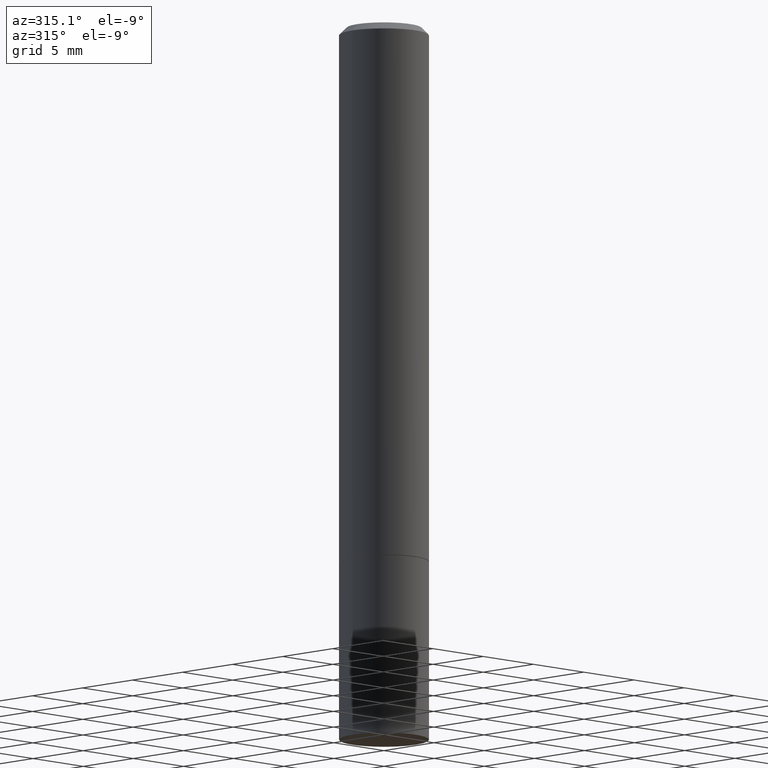
[diagram: clean part render]
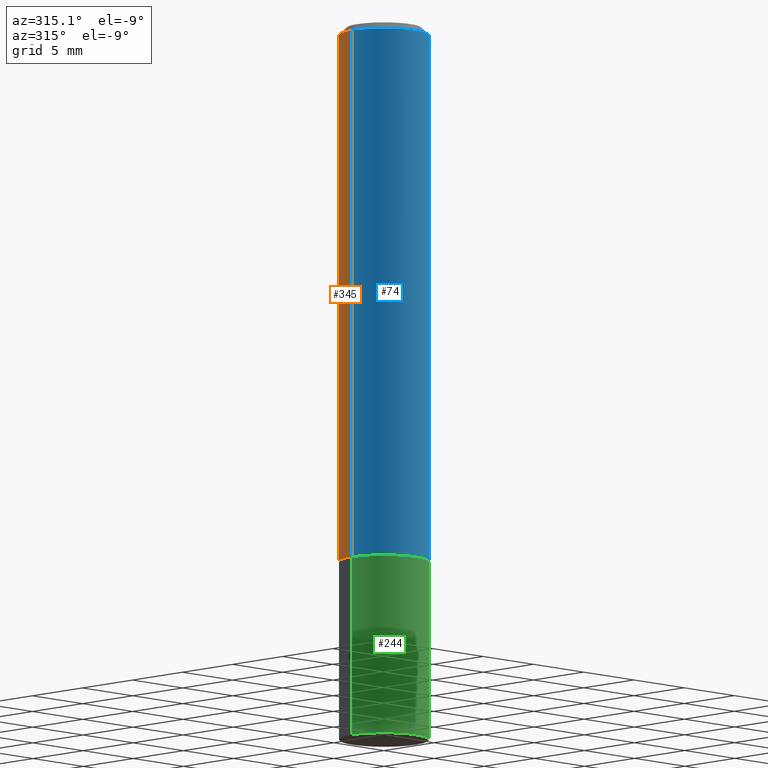
[diagram: same view with three faces highlighted in distinct colors, each labeled with its STEP entity id]
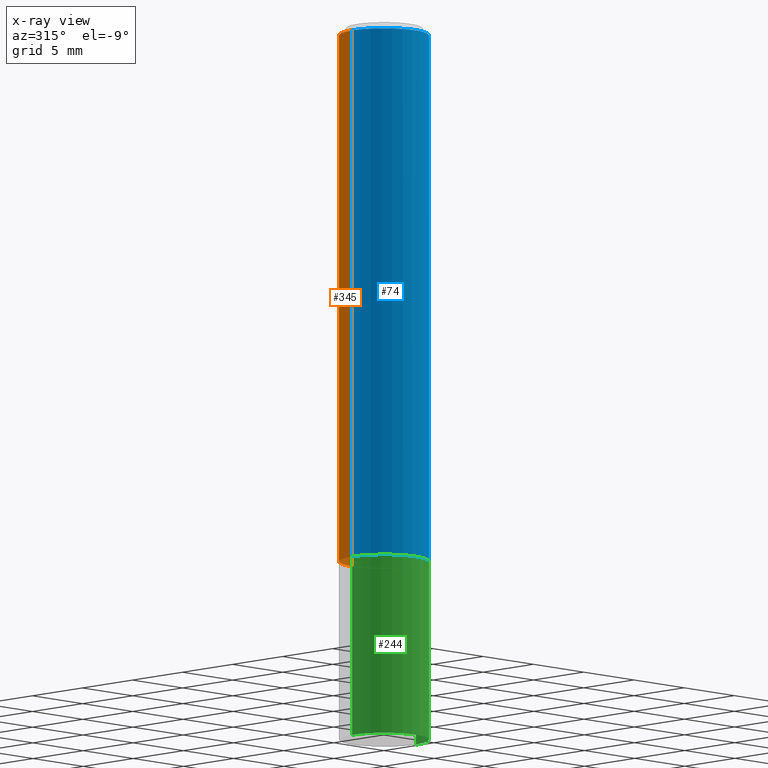
[diagram: x-ray of the same camera — body ghosted, the three highlighted faces saturated]
A machine part, auxiliary view with three faces highlighted in distinct colors.
The next image is the same camera in x-ray (body ghosted, the three faces saturated) — at least one of them is partly hidden behind the body in this view.
Their STEP definitions:

[orange] entity #345 — the highlighted cylindrical surface (partial cylindrical patch) has radius 3.175 mm, axis along (-0, 0, 1).
#12 = VERTEX_POINT ( 'NONE', #343 ) ;
#17 = EDGE_CURVE ( 'NONE', #94, #220, #141, .T. ) ;
#19 = CARTESIAN_POINT ( 'NONE',  ( 3.665757740471518732E-29, -5.233730526925875170E-15, -1.498999999999999666 ) ) ;
#28 = ORIENTED_EDGE ( 'NONE', *, *, #17, .F. ) ;
#42 = FACE_OUTER_BOUND ( 'NONE', #304, .T. ) ;
#57 = CARTESIAN_POINT ( 'NONE',  ( 0.1250000000000000000, -6.106600861636658508E-15, -1.498999999999999666 ) ) ;
#59 = DIRECTION ( 'NONE',  ( -2.445468806185136877E-29, 3.491481338843145188E-15, 1.000000000000000000 ) ) ;
#63 = LINE ( 'NONE', #172, #240 ) ;
#78 = DIRECTION ( 'NONE',  ( 1.000000000000000000, -6.982962677686266711E-15, 0.000000000000000000 ) ) ;
#85 = ORIENTED_EDGE ( 'NONE', *, *, #113, .F. ) ;
#93 = CIRCLE ( 'NONE', #291, 0.1250000000000000000 ) ;
#94 = VERTEX_POINT ( 'NONE', #57 ) ;
#97 = ORIENTED_EDGE ( 'NONE', *, *, #225, .T. ) ;
#109 = VECTOR ( 'NONE', #258, 39.37007874015748143 ) ;
#113 = EDGE_CURVE ( 'NONE', #220, #12, #346, .T. ) ;
#135 = DIRECTION ( 'NONE',  ( -2.445468806185136597E-29, 3.491481338843145583E-15, 1.000000000000000000 ) ) ;
#141 = LINE ( 'NONE', #142, #109 ) ;
#142 = CARTESIAN_POINT ( 'NONE',  ( 0.1249999999999999167, -8.728703347107827472E-16, 6.095220969744915537E-30 ) ) ;
#150 = AXIS2_PLACEMENT_3D ( 'NONE', #185, #135, #213 ) ;
#154 = CARTESIAN_POINT ( 'NONE',  ( -0.1250000000000000000, -1.763601657151241635E-15, -1.498999999999999666 ) ) ;
#172 = CARTESIAN_POINT ( 'NONE',  ( -0.1249999999999999167, 8.881784197001246407E-16, -6.148668862818628023E-30 ) ) ;
#175 = DIRECTION ( 'NONE',  ( 1.000000000000000000, -6.982962677686270655E-15, 0.000000000000000000 ) ) ;
#185 = CARTESIAN_POINT ( 'NONE',  ( 0.000000000000000000, 0.000000000000000000, 0.000000000000000000 ) ) ;
#186 = CARTESIAN_POINT ( 'NONE',  ( 0.1249999999999998335, -9.273918764983031658E-16, -0.02000000000000002470 ) ) ;
#194 = EDGE_CURVE ( 'NONE', #354, #12, #63, .T. ) ;
#213 = DIRECTION ( 'NONE',  ( 1.000000000000000000, -6.982962677686266711E-15, 4.876176775795935793E-29 ) ) ;
#220 = VERTEX_POINT ( 'NONE', #186 ) ;
#222 = DIRECTION ( 'NONE',  ( -2.445468806185136597E-29, 3.491481338843145583E-15, 1.000000000000000000 ) ) ;
#225 = EDGE_CURVE ( 'NONE', #94, #354, #93, .T. ) ;
#240 = VECTOR ( 'NONE', #59, 39.37007874015748143 ) ;
#243 = ORIENTED_EDGE ( 'NONE', *, *, #194, .T. ) ;
#257 = DIRECTION ( 'NONE',  ( -2.445468806185136597E-29, 3.491481338843145583E-15, 1.000000000000000000 ) ) ;
#258 = DIRECTION ( 'NONE',  ( -2.445468806185136877E-29, 3.491481338843145188E-15, 1.000000000000000000 ) ) ;
#289 = CARTESIAN_POINT ( 'NONE',  ( 4.890937612370279289E-31, -6.982962677686299005E-17, -0.02000000000000002470 ) ) ;
#291 = AXIS2_PLACEMENT_3D ( 'NONE', #19, #222, #175 ) ;
#304 = EDGE_LOOP ( 'NONE', ( #97, #243, #85, #28 ) ) ;
#330 = AXIS2_PLACEMENT_3D ( 'NONE', #289, #257, #78 ) ;
#334 = CYLINDRICAL_SURFACE ( 'NONE', #150, 0.1249999999999999167 ) ;
#343 = CARTESIAN_POINT ( 'NONE',  ( -0.1249999999999998335, 8.030407079339191532E-16, -0.02000000000000002470 ) ) ;
#345 = ADVANCED_FACE ( 'NONE', ( #42 ), #334, .T. ) ;
#346 = CIRCLE ( 'NONE', #330, 0.1249999999999998335 ) ;
#354 = VERTEX_POINT ( 'NONE', #154 ) ;

[blue] entity #74 — the highlighted cylindrical surface (partial cylindrical patch) has radius 3.175 mm, axis along (-0, 0, 1).
#2 = DIRECTION ( 'NONE',  ( -2.445468806185136597E-29, 3.491481338843145583E-15, 1.000000000000000000 ) ) ;
#4 = EDGE_CURVE ( 'NONE', #354, #94, #82, .T. ) ;
#12 = VERTEX_POINT ( 'NONE', #343 ) ;
#17 = EDGE_CURVE ( 'NONE', #94, #220, #141, .T. ) ;
#22 = AXIS2_PLACEMENT_3D ( 'NONE', #358, #226, #335 ) ;
#38 = ORIENTED_EDGE ( 'NONE', *, *, #194, .F. ) ;
#49 = CYLINDRICAL_SURFACE ( 'NONE', #22, 0.1249999999999999167 ) ;
#55 = DIRECTION ( 'NONE',  ( 1.000000000000000000, -6.982962677686270655E-15, 0.000000000000000000 ) ) ;
#57 = CARTESIAN_POINT ( 'NONE',  ( 0.1250000000000000000, -6.106600861636658508E-15, -1.498999999999999666 ) ) ;
#59 = DIRECTION ( 'NONE',  ( -2.445468806185136877E-29, 3.491481338843145188E-15, 1.000000000000000000 ) ) ;
#63 = LINE ( 'NONE', #172, #240 ) ;
#74 = ADVANCED_FACE ( 'NONE', ( #140 ), #49, .T. ) ;
#82 = CIRCLE ( 'NONE', #316, 0.1250000000000000000 ) ;
#92 = CIRCLE ( 'NONE', #270, 0.1249999999999998335 ) ;
#94 = VERTEX_POINT ( 'NONE', #57 ) ;
#109 = VECTOR ( 'NONE', #258, 39.37007874015748143 ) ;
#110 = DIRECTION ( 'NONE',  ( -2.445468806185136597E-29, 3.491481338843145583E-15, 1.000000000000000000 ) ) ;
#140 = FACE_OUTER_BOUND ( 'NONE', #274, .T. ) ;
#141 = LINE ( 'NONE', #142, #109 ) ;
#142 = CARTESIAN_POINT ( 'NONE',  ( 0.1249999999999999167, -8.728703347107827472E-16, 6.095220969744915537E-30 ) ) ;
#147 = CARTESIAN_POINT ( 'NONE',  ( 4.890937612370279289E-31, -6.982962677686299005E-17, -0.02000000000000002470 ) ) ;
#154 = CARTESIAN_POINT ( 'NONE',  ( -0.1250000000000000000, -1.763601657151241635E-15, -1.498999999999999666 ) ) ;
#172 = CARTESIAN_POINT ( 'NONE',  ( -0.1249999999999999167, 8.881784197001246407E-16, -6.148668862818628023E-30 ) ) ;
#186 = CARTESIAN_POINT ( 'NONE',  ( 0.1249999999999998335, -9.273918764983031658E-16, -0.02000000000000002470 ) ) ;
#194 = EDGE_CURVE ( 'NONE', #354, #12, #63, .T. ) ;
#207 = EDGE_CURVE ( 'NONE', #12, #220, #92, .T. ) ;
#216 = ORIENTED_EDGE ( 'NONE', *, *, #17, .T. ) ;
#220 = VERTEX_POINT ( 'NONE', #186 ) ;
#226 = DIRECTION ( 'NONE',  ( -2.445468806185136597E-29, 3.491481338843145583E-15, 1.000000000000000000 ) ) ;
#240 = VECTOR ( 'NONE', #59, 39.37007874015748143 ) ;
#258 = DIRECTION ( 'NONE',  ( -2.445468806185136877E-29, 3.491481338843145188E-15, 1.000000000000000000 ) ) ;
#270 = AXIS2_PLACEMENT_3D ( 'NONE', #147, #2, #319 ) ;
#274 = EDGE_LOOP ( 'NONE', ( #38, #351, #216, #366 ) ) ;
#287 = CARTESIAN_POINT ( 'NONE',  ( 3.665757740471518732E-29, -5.233730526925875170E-15, -1.498999999999999666 ) ) ;
#316 = AXIS2_PLACEMENT_3D ( 'NONE', #287, #110, #55 ) ;
#319 = DIRECTION ( 'NONE',  ( 1.000000000000000000, -6.982962677686266711E-15, 0.000000000000000000 ) ) ;
#335 = DIRECTION ( 'NONE',  ( 1.000000000000000000, -6.982962677686266711E-15, 4.876176775795935793E-29 ) ) ;
#343 = CARTESIAN_POINT ( 'NONE',  ( -0.1249999999999998335, 8.030407079339191532E-16, -0.02000000000000002470 ) ) ;
#351 = ORIENTED_EDGE ( 'NONE', *, *, #4, .T. ) ;
#354 = VERTEX_POINT ( 'NONE', #154 ) ;
#358 = CARTESIAN_POINT ( 'NONE',  ( 0.000000000000000000, 0.000000000000000000, 0.000000000000000000 ) ) ;
#366 = ORIENTED_EDGE ( 'NONE', *, *, #207, .F. ) ;

[green] entity #244 — the highlighted cylindrical surface (partial cylindrical patch) has radius 3.175 mm, axis along (-0, 0, 1).
#14 = AXIS2_PLACEMENT_3D ( 'NONE', #80, #195, #308 ) ;
#15 = AXIS2_PLACEMENT_3D ( 'NONE', #139, #163, #77 ) ;
#26 = LINE ( 'NONE', #192, #350 ) ;
#46 = CIRCLE ( 'NONE', #15, 0.1250000000000000000 ) ;
#52 = CARTESIAN_POINT ( 'NONE',  ( -0.1250000000000000000, 8.881784197001252323E-16, -6.148668862818632227E-30 ) ) ;
#73 = CARTESIAN_POINT ( 'NONE',  ( 0.000000000000000000, 0.000000000000000000, 0.000000000000000000 ) ) ;
#77 = DIRECTION ( 'NONE',  ( 1.000000000000000000, -6.982962677686270655E-15, 0.000000000000000000 ) ) ;
#80 = CARTESIAN_POINT ( 'NONE',  ( 3.668203209277704335E-29, -5.237222008264717388E-15, -1.499999999999999778 ) ) ;
#87 = LINE ( 'NONE', #52, #202 ) ;
#123 = EDGE_CURVE ( 'NONE', #248, #127, #87, .T. ) ;
#127 = VERTEX_POINT ( 'NONE', #231 ) ;
#128 = ORIENTED_EDGE ( 'NONE', *, *, #228, .T. ) ;
#133 = CYLINDRICAL_SURFACE ( 'NONE', #266, 0.1250000000000000000 ) ;
#139 = CARTESIAN_POINT ( 'NONE',  ( 4.890937612370273194E-29, -6.982962677686291165E-15, -2.000000000000000000 ) ) ;
#161 = EDGE_CURVE ( 'NONE', #127, #353, #340, .T. ) ;
#163 = DIRECTION ( 'NONE',  ( -2.445468806185136597E-29, 3.491481338843145583E-15, 1.000000000000000000 ) ) ;
#164 = DIRECTION ( 'NONE',  ( -2.445468806185136877E-29, 3.491481338843145188E-15, 1.000000000000000000 ) ) ;
#184 = ORIENTED_EDGE ( 'NONE', *, *, #161, .F. ) ;
#192 = CARTESIAN_POINT ( 'NONE',  ( 0.1250000000000000000, -8.728703347107833388E-16, 6.095220969744919741E-30 ) ) ;
#195 = DIRECTION ( 'NONE',  ( -2.445468806185136597E-29, 3.491481338843145583E-15, 1.000000000000000000 ) ) ;
#199 = ORIENTED_EDGE ( 'NONE', *, *, #123, .F. ) ;
#202 = VECTOR ( 'NONE', #164, 39.37007874015748143 ) ;
#228 = EDGE_CURVE ( 'NONE', #248, #281, #46, .T. ) ;
#231 = CARTESIAN_POINT ( 'NONE',  ( -0.1250000000000000000, -5.221913923275378650E-15, -1.499999999999999778 ) ) ;
#237 = CARTESIAN_POINT ( 'NONE',  ( -0.1250000000000000000, -5.221913923275378650E-15, -2.000000000000000000 ) ) ;
#244 = ADVANCED_FACE ( 'NONE', ( #361 ), #133, .T. ) ;
#248 = VERTEX_POINT ( 'NONE', #237 ) ;
#249 = EDGE_CURVE ( 'NONE', #281, #353, #26, .T. ) ;
#266 = AXIS2_PLACEMENT_3D ( 'NONE', #73, #286, #336 ) ;
#275 = ORIENTED_EDGE ( 'NONE', *, *, #249, .T. ) ;
#281 = VERTEX_POINT ( 'NONE', #347 ) ;
#286 = DIRECTION ( 'NONE',  ( -2.445468806185136597E-29, 3.491481338843145583E-15, 1.000000000000000000 ) ) ;
#299 = CARTESIAN_POINT ( 'NONE',  ( 0.1250000000000000000, -6.110092342975501516E-15, -1.499999999999999778 ) ) ;
#307 = DIRECTION ( 'NONE',  ( -2.445468806185136877E-29, 3.491481338843145188E-15, 1.000000000000000000 ) ) ;
#308 = DIRECTION ( 'NONE',  ( 1.000000000000000000, -6.982962677686270655E-15, 0.000000000000000000 ) ) ;
#336 = DIRECTION ( 'NONE',  ( 1.000000000000000000, -6.982962677686266711E-15, 4.876176775795935793E-29 ) ) ;
#340 = CIRCLE ( 'NONE', #14, 0.1250000000000000000 ) ;
#347 = CARTESIAN_POINT ( 'NONE',  ( 0.1250000000000000000, -7.855833012397075293E-15, -2.000000000000000000 ) ) ;
#350 = VECTOR ( 'NONE', #307, 39.37007874015748143 ) ;
#352 = EDGE_LOOP ( 'NONE', ( #199, #128, #275, #184 ) ) ;
#353 = VERTEX_POINT ( 'NONE', #299 ) ;
#361 = FACE_OUTER_BOUND ( 'NONE', #352, .T. ) ;